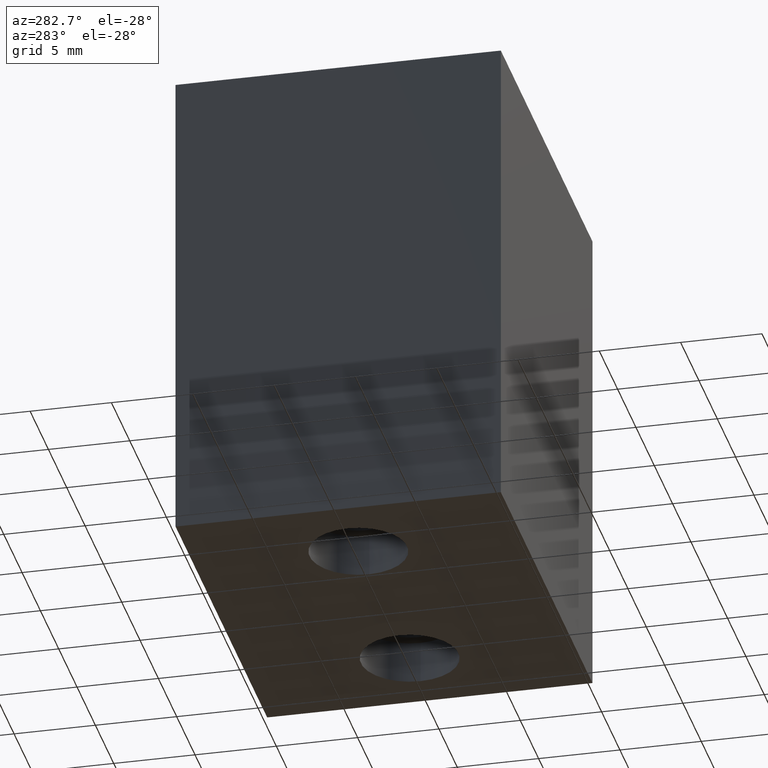
[diagram: clean part render]
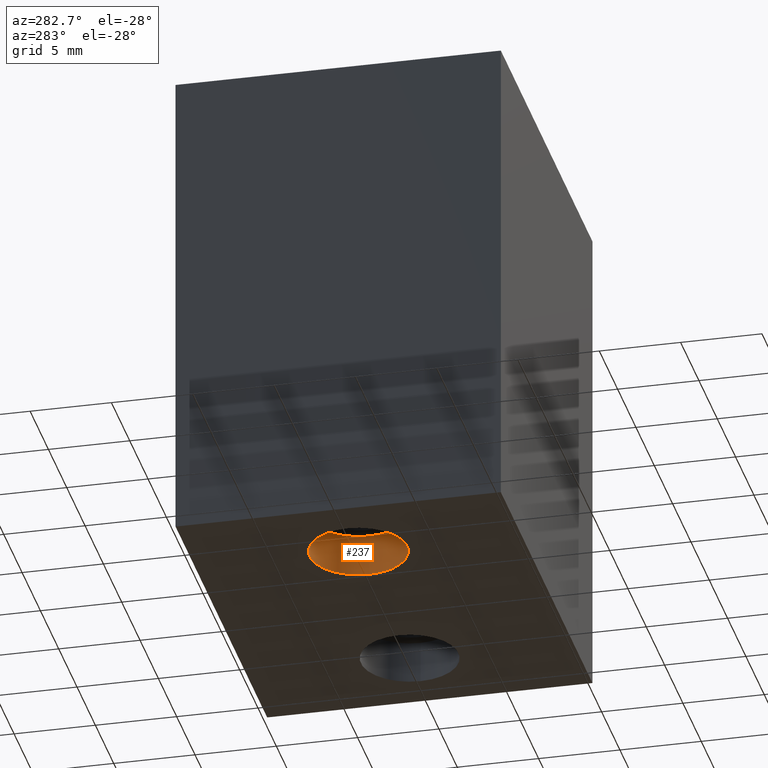
[diagram: same view with one face highlighted and labeled with its STEP entity id]
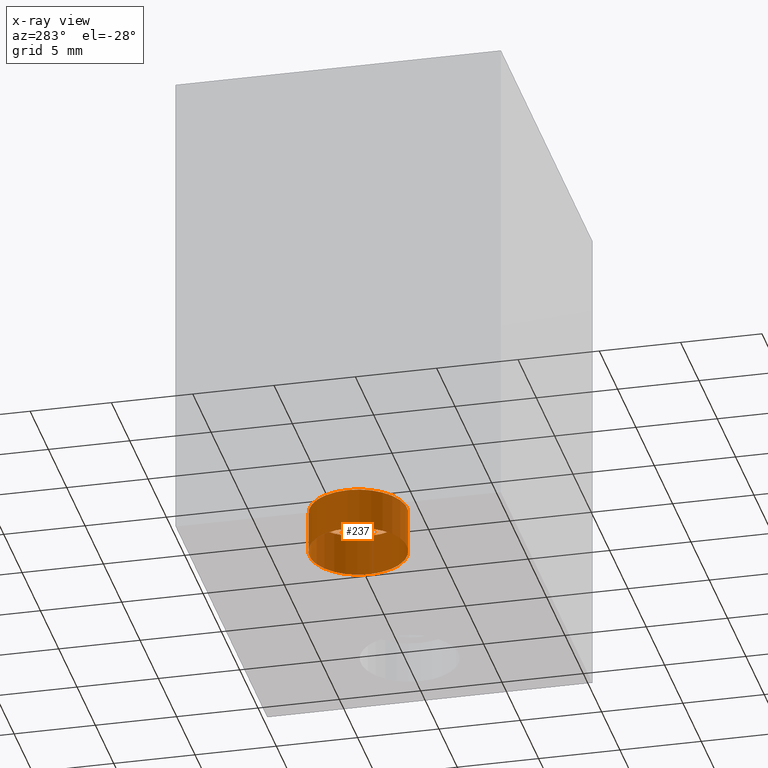
[diagram: x-ray of the same camera — body ghosted, the highlighted face saturated]
A machine part, auxiliary view. The second image highlights one B-rep face of the part: STEP entity #237.
The next image is the same camera in x-ray: the body ghosted, the highlighted face saturated — about 0% of this face is hidden behind the body in this view.
In plain terms, the highlighted cylindrical surface (bore or boss wall) has radius 3 mm, axis along (0, 0, -1).
Its self-contained STEP definition (entity closure, byte-faithful):
#33=FACE_OUTER_BOUND('',#49,.T.);
#49=EDGE_LOOP('',(#171,#172,#173,#174));
#73=LINE('',#385,#91);
#91=VECTOR('',#310,3.);
#109=CIRCLE('',#277,3.);
#110=CIRCLE('',#278,3.);
#121=VERTEX_POINT('',#382);
#122=VERTEX_POINT('',#384);
#141=EDGE_CURVE('',#121,#121,#109,.T.);
#142=EDGE_CURVE('',#121,#122,#73,.T.);
#143=EDGE_CURVE('',#122,#122,#110,.T.);
#171=ORIENTED_EDGE('',*,*,#141,.F.);
#172=ORIENTED_EDGE('',*,*,#142,.T.);
#173=ORIENTED_EDGE('',*,*,#143,.F.);
#174=ORIENTED_EDGE('',*,*,#142,.F.);
#231=CYLINDRICAL_SURFACE('',#276,3.);
#237=ADVANCED_FACE('',(#33),#231,.F.);
#276=AXIS2_PLACEMENT_3D('',#381,#306,#307);
#277=AXIS2_PLACEMENT_3D('',#383,#308,#309);
#278=AXIS2_PLACEMENT_3D('',#386,#311,#312);
#306=DIRECTION('center_axis',(0.,0.,-1.));
#307=DIRECTION('ref_axis',(-1.,0.,0.));
#308=DIRECTION('center_axis',(0.,0.,1.));
#309=DIRECTION('ref_axis',(-1.,0.,0.));
#310=DIRECTION('',(0.,0.,1.));
#311=DIRECTION('center_axis',(0.,0.,-1.));
#312=DIRECTION('ref_axis',(-1.,0.,0.));
#381=CARTESIAN_POINT('Origin',(-7.,-8.86231387054631E-16,1.3));
#382=CARTESIAN_POINT('',(-4.,-1.25362542679884E-15,0.));
#383=CARTESIAN_POINT('Origin',(-7.,-8.86231387054631E-16,0.));
#384=CARTESIAN_POINT('',(-4.,-1.25362542679884E-15,2.6));
#385=CARTESIAN_POINT('',(-4.,-1.25362542679884E-15,1.3));
#386=CARTESIAN_POINT('Origin',(-7.,-8.86231387054631E-16,2.6));